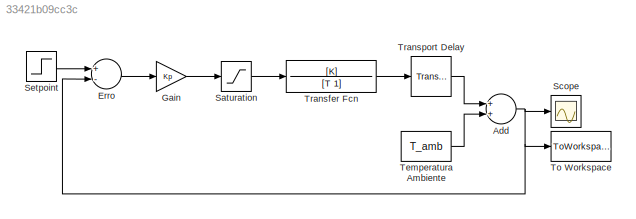
MODEL slx_33421b09cc3c
KIND model
CONFIG AbsTol = auto
CONFIG EnableMultiTasking = off
CONFIG FixedStep = .1
CONFIG MaxStep = auto
CONFIG MinStep = auto
CONFIG RelTol = 1e-3
CONFIG SampleTimeConstraint = Unconstrained
CONFIG Solver = FixedStepAuto
CONFIG SolverName = FixedStepAuto
CONFIG StartTime = 0.0
CONFIG StopTime = 100
BLOCK [Sum] Add
  InputSameDT = off
  OutDataTypeStr = Inherit: Inherit via internal rule
  Ports = [2, 1]
  SaturateOnIntegerOverflow = off
BLOCK [Sum] Erro
  InputSameDT = off
  Inputs = +-
  OutDataTypeStr = Inherit: Inherit via internal rule
  Ports = [2, 1]
  SaturateOnIntegerOverflow = off
BLOCK [Gain] Gain
  Gain = Kp
  OutDataTypeStr = Inherit: Inherit via internal rule
  ParamDataTypeStr = Inherit: Inherit via internal rule
  SaturateOnIntegerOverflow = off
BLOCK [Saturate] Saturation
  InputPortMap = u0
  LowerLimit = 0
  Ports = [1, 1]
  UpperLimit = 100
BLOCK [Scope] Scope
  Floating = off
  NumInputPorts = 1
  Ports = [1]
  ScopeSpecificationString = Simulink.scopes.TimeScopeBlockCfg('CurrentConfiguration', extmgr.ConfigurationSet(extmgr.Configuration('Core','General UI',true),extmgr.Configuration('Core','Source UI',true),extmgr.Configuration('Sources','WiredSimulink',true),extmgr.Configuration('Visuals','Time Domain',true,'SerializedDisplays',{struct('MinYLimReal','19.85962','MaxYLimReal','70.26338','YLabelReal','','MinYLimMag','19.85962','Ma...<+1378ch>
BLOCK [Step] Setpoint
  After = T_setpoint
  SampleTime = 0
  Time = 0
BLOCK [Constant] Temperatura Ambiente
  Value = T_amb
BLOCK [ToWorkspace] To Workspace
  FixptAsFi = on
  MaxDataPoints = inf
  Ports = [1]
  SampleTime = .1
  Save2DSignal = 2-D array (concatenate along first dimension)
  VariableName = temperatura
BLOCK [TransferFcn] Transfer Fcn
  Denominator = [T 1]
  Numerator = [K]
BLOCK [TransportDelay] Transport Delay
  DelayTime = L
  Ports = [1, 1]
NET Add:1 -> Erro:2, Scope:1, To Workspace:1
LINE Erro:1 -> Gain:1
LINE Gain:1 -> Saturation:1
LINE Saturation:1 -> Transfer Fcn:1
LINE Setpoint:1 -> Erro:1
LINE Temperatura Ambiente:1 -> Add:2
LINE Transfer Fcn:1 -> Transport Delay:1
LINE Transport Delay:1 -> Add:1
note: NET lines group one-source signal fan-out (src -> all destinations, sorted); 1:1 wires keep LINE
